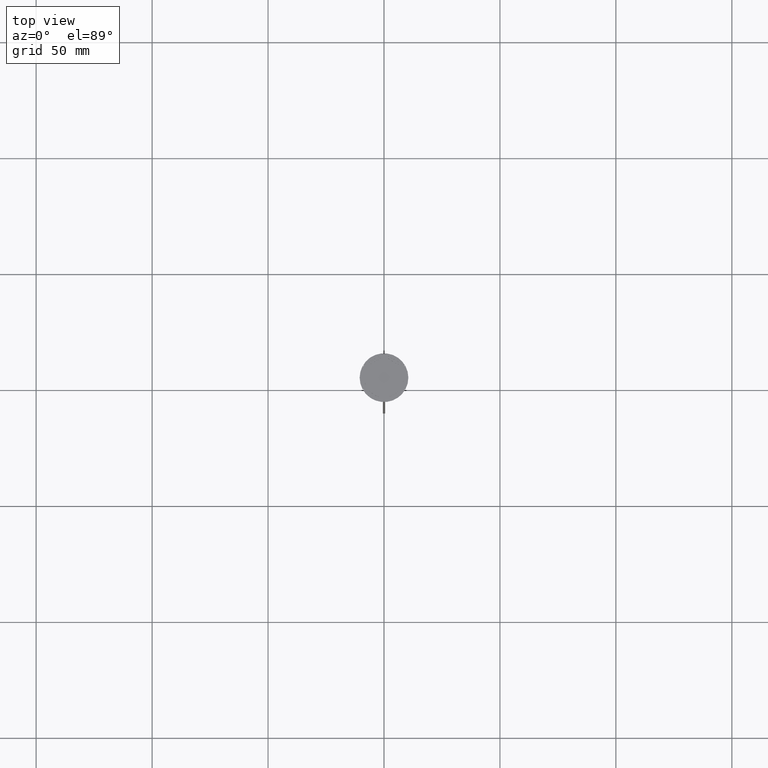
[diagram: clean part render]
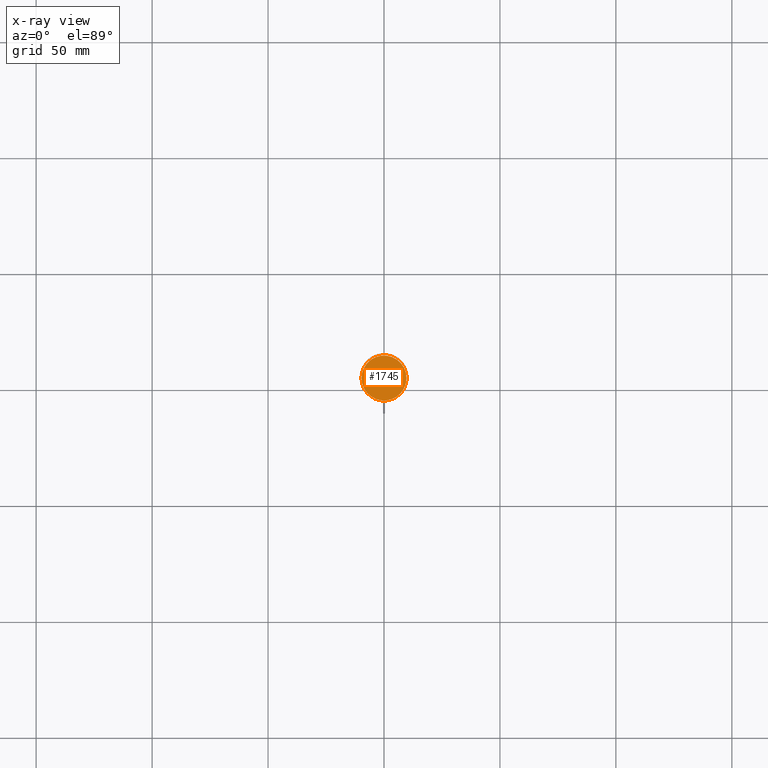
[diagram: x-ray — body ghosted, one internal face saturated and labeled with its STEP entity id]
A machine part, top view, then the same camera in x-ray: the body is ghosted and one INTERNAL B-rep face — a face not visible from any outside direction — is saturated and labeled: STEP entity #1745.
In plain terms, the highlighted planar face has unit normal (0, 0, -1).
Its self-contained STEP definition (entity closure, byte-faithful):
#51 = DIRECTION ( 'NONE',  ( -1.000000000000000000, 0.000000000000000000, 0.000000000000000000 ) ) ;
#53 = EDGE_CURVE ( 'NONE', #426, #2607, #2616, .T. ) ;
#200 = FACE_OUTER_BOUND ( 'NONE', #466, .T. ) ;
#230 = AXIS2_PLACEMENT_3D ( 'NONE', #1960, #452, #2310 ) ;
#339 = CARTESIAN_POINT ( 'NONE',  ( 9.700000000000002842, 1.206277097160143024E-15, -12.00000000000000000 ) ) ;
#426 = VERTEX_POINT ( 'NONE', #2462 ) ;
#452 = DIRECTION ( 'NONE',  ( -0.000000000000000000, -0.000000000000000000, 1.000000000000000000 ) ) ;
#466 = EDGE_LOOP ( 'NONE', ( #2303, #1773 ) ) ;
#618 = AXIS2_PLACEMENT_3D ( 'NONE', #808, #1465, #2469 ) ;
#808 = CARTESIAN_POINT ( 'NONE',  ( 0.000000000000000000, 0.000000000000000000, -12.00000000000000000 ) ) ;
#853 = CARTESIAN_POINT ( 'NONE',  ( 0.000000000000000000, 0.000000000000000000, -12.00000000000000000 ) ) ;
#1406 = CIRCLE ( 'NONE', #230, 9.700000000000002842 ) ;
#1465 = DIRECTION ( 'NONE',  ( 0.000000000000000000, 0.000000000000000000, -1.000000000000000000 ) ) ;
#1689 = DIRECTION ( 'NONE',  ( -0.000000000000000000, -0.000000000000000000, 1.000000000000000000 ) ) ;
#1745 = ADVANCED_FACE ( 'NONE', ( #200 ), #2081, .F. ) ;
#1773 = ORIENTED_EDGE ( 'NONE', *, *, #1909, .T. ) ;
#1909 = EDGE_CURVE ( 'NONE', #2607, #426, #1406, .T. ) ;
#1960 = CARTESIAN_POINT ( 'NONE',  ( 0.000000000000000000, 0.000000000000000000, -12.00000000000000000 ) ) ;
#2081 = PLANE ( 'NONE',  #618 ) ;
#2303 = ORIENTED_EDGE ( 'NONE', *, *, #53, .T. ) ;
#2310 = DIRECTION ( 'NONE',  ( -1.000000000000000000, 0.000000000000000000, 0.000000000000000000 ) ) ;
#2462 = CARTESIAN_POINT ( 'NONE',  ( -9.700000000000002842, 0.000000000000000000, -12.00000000000000000 ) ) ;
#2469 = DIRECTION ( 'NONE',  ( -1.000000000000000000, 0.000000000000000000, -0.000000000000000000 ) ) ;
#2536 = AXIS2_PLACEMENT_3D ( 'NONE', #853, #1689, #51 ) ;
#2607 = VERTEX_POINT ( 'NONE', #339 ) ;
#2616 = CIRCLE ( 'NONE', #2536, 9.700000000000002842 ) ;